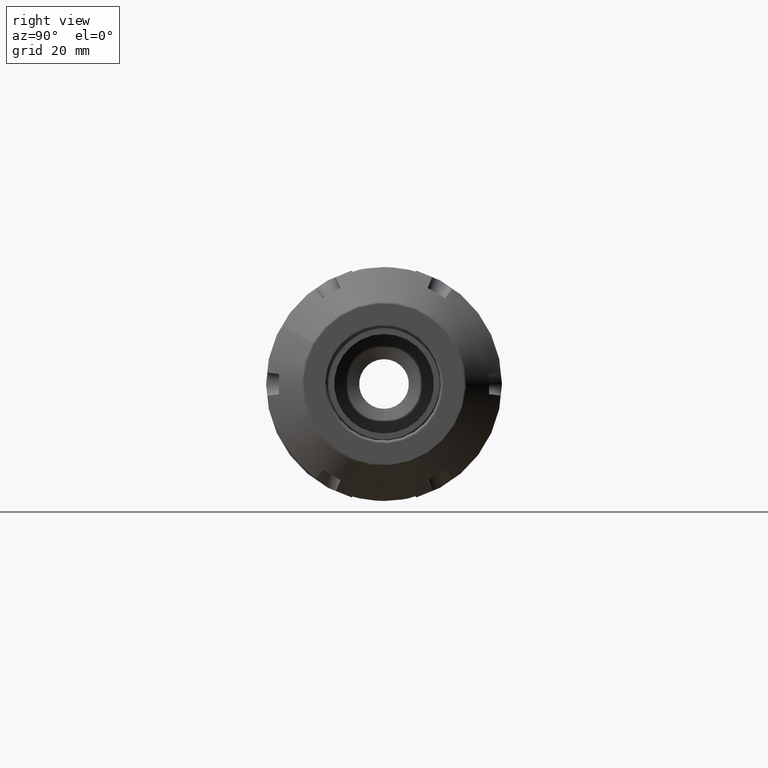
[diagram: clean part render]
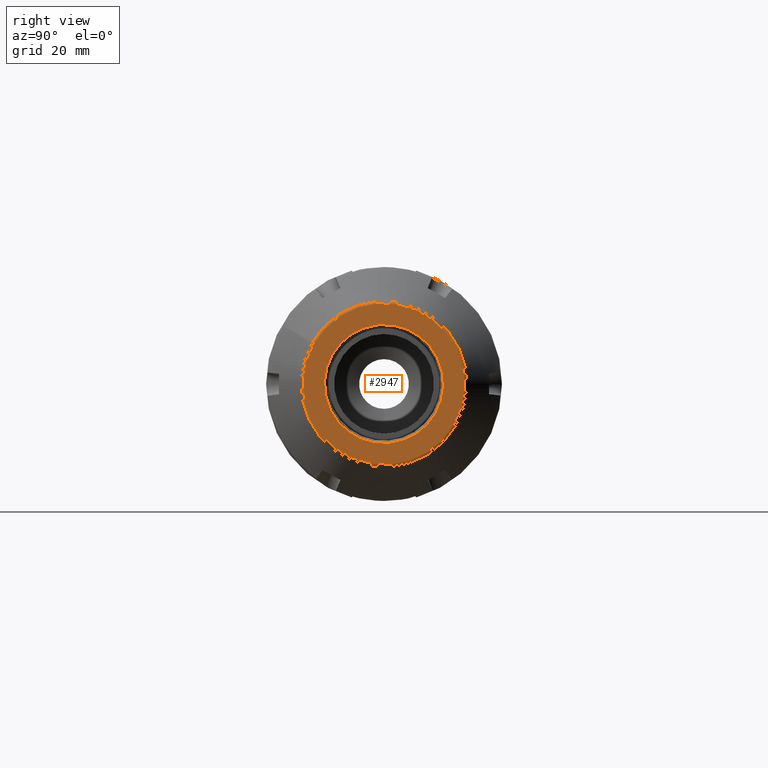
[diagram: same view with one face highlighted and labeled with its STEP entity id]
A machine part, right view. The second image highlights one B-rep face of the part: STEP entity #2947.
In plain terms, the highlighted planar face has unit normal (1, -0, -0).
Its self-contained STEP definition (entity closure, byte-faithful):
#2916=CARTESIAN_POINT('',(0.0,0.852323593128807,-2.087522E-016));
#2917=VERTEX_POINT('',#2916);
#2918=CARTESIAN_POINT('',(0.0,0.0,0.0));
#2919=DIRECTION('',(-1.0,0.0,0.0));
#2920=DIRECTION('',(0.0,-1.0,0.0));
#2921=AXIS2_PLACEMENT_3D('',#2918,#2919,#2920);
#2922=CIRCLE('',#2921,0.852323593128807);
#2923=EDGE_CURVE('',#2917,#2917,#2922,.T.);
#2928=CARTESIAN_POINT('',(-4.865422E-019,0.732875,0.0));
#2929=DIRECTION('',(1.0,0.0,0.0));
#2930=DIRECTION('',(0.0,0.0,-1.0));
#2931=AXIS2_PLACEMENT_3D('',#2928,#2929,#2930);
#2932=PLANE('',#2931);
#2933=ORIENTED_EDGE('',*,*,#2923,.F.);
#2934=EDGE_LOOP('',(#2933));
#2935=FACE_OUTER_BOUND('',#2934,.T.);
#2936=CARTESIAN_POINT('',(0.0,0.631,0.0));
#2937=VERTEX_POINT('',#2936);
#2938=CARTESIAN_POINT('',(0.0,0.0,0.0));
#2939=DIRECTION('',(1.0,0.0,0.0));
#2940=DIRECTION('',(0.0,-1.0,0.0));
#2941=AXIS2_PLACEMENT_3D('',#2938,#2939,#2940);
#2942=CIRCLE('',#2941,0.631);
#2943=EDGE_CURVE('',#2937,#2937,#2942,.T.);
#2944=ORIENTED_EDGE('',*,*,#2943,.F.);
#2945=EDGE_LOOP('',(#2944));
#2946=FACE_BOUND('',#2945,.T.);
#2947=ADVANCED_FACE('',(#2935,#2946),#2932,.T.);